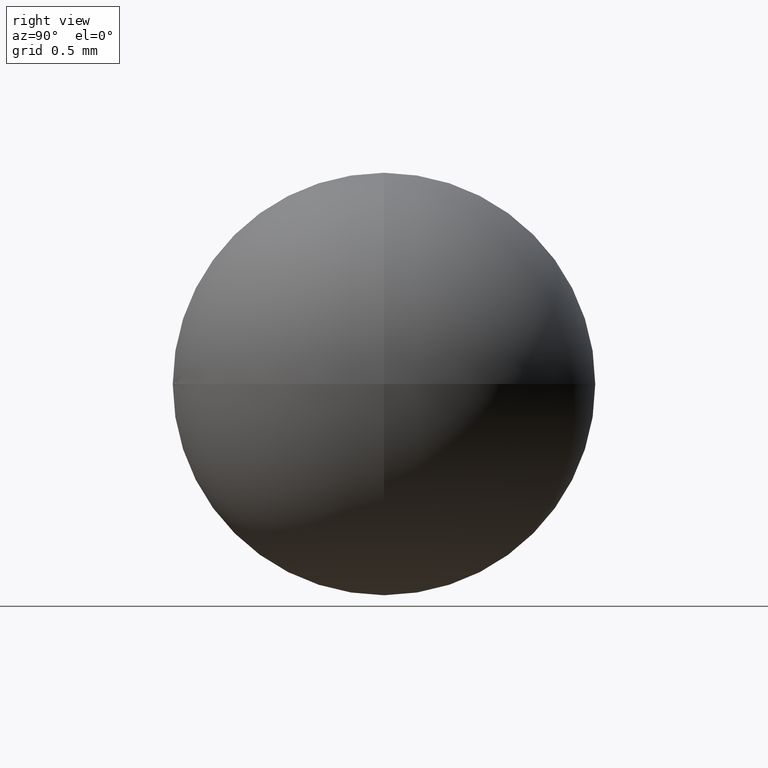
[diagram: clean part render]
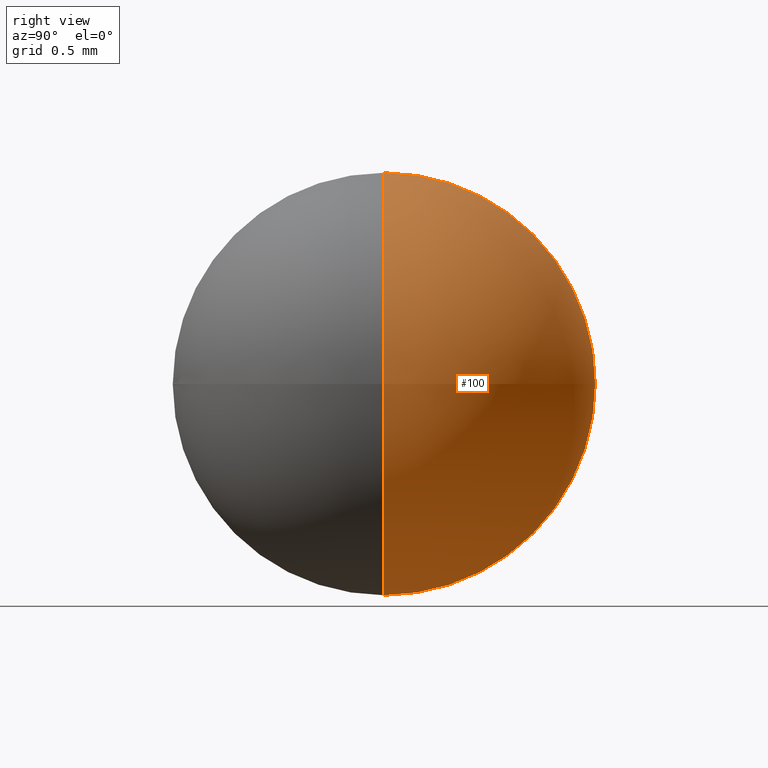
[diagram: same view with one face highlighted and labeled with its STEP entity id]
A machine part, right view. The second image highlights one B-rep face of the part: STEP entity #100.
In plain terms, the highlighted spherical surface has radius 1.5 mm.
Its self-contained STEP definition (entity closure, byte-faithful):
#3 = DIRECTION ( 'NONE',  ( 1.000000000000000000, 1.224646799147353200E-016, 0.0000000000000000000 ) ) ;
#15 = CARTESIAN_POINT ( 'NONE',  ( 0.0000000000000000000, 0.0000000000000000000, 0.0000000000000000000 ) ) ;
#18 = SPHERICAL_SURFACE ( 'NONE', #107, 1.500000000000000200 ) ;
#29 = DIRECTION ( 'NONE',  ( 0.0000000000000000000, 1.000000000000000000, -0.0000000000000000000 ) ) ;
#30 = CARTESIAN_POINT ( 'NONE',  ( 0.0000000000000000000, 0.0000000000000000000, 0.0000000000000000000 ) ) ;
#33 = ORIENTED_EDGE ( 'NONE', *, *, #112, .T. ) ;
#65 = DIRECTION ( 'NONE',  ( 0.0000000000000000000, 0.0000000000000000000, 1.000000000000000000 ) ) ;
#72 = EDGE_CURVE ( 'NONE', #139, #90, #188, .T. ) ;
#89 = AXIS2_PLACEMENT_3D ( 'NONE', #15, #194, #3 ) ;
#90 = VERTEX_POINT ( 'NONE', #113 ) ;
#95 = DIRECTION ( 'NONE',  ( 1.000000000000000000, 0.0000000000000000000, 0.0000000000000000000 ) ) ;
#100 = ADVANCED_FACE ( 'NONE', ( #162 ), #18, .T. ) ;
#107 = AXIS2_PLACEMENT_3D ( 'NONE', #114, #192, #95 ) ;
#112 = EDGE_CURVE ( 'NONE', #139, #90, #186, .T. ) ;
#113 = CARTESIAN_POINT ( 'NONE',  ( 9.184850993605150900E-017, 0.0000000000000000000, -1.500000000000000200 ) ) ;
#114 = CARTESIAN_POINT ( 'NONE',  ( 0.0000000000000000000, 0.0000000000000000000, 0.0000000000000000000 ) ) ;
#117 = AXIS2_PLACEMENT_3D ( 'NONE', #30, #29, #65 ) ;
#139 = VERTEX_POINT ( 'NONE', #146 ) ;
#146 = CARTESIAN_POINT ( 'NONE',  ( 9.184850993605150900E-017, 0.0000000000000000000, 1.500000000000000200 ) ) ;
#156 = EDGE_LOOP ( 'NONE', ( #201, #33 ) ) ;
#162 = FACE_OUTER_BOUND ( 'NONE', #156, .T. ) ;
#186 = CIRCLE ( 'NONE', #117, 1.500000000000000200 ) ;
#188 = CIRCLE ( 'NONE', #89, 1.500000000000000200 ) ;
#192 = DIRECTION ( 'NONE',  ( 0.0000000000000000000, -1.000000000000000000, -0.0000000000000000000 ) ) ;
#194 = DIRECTION ( 'NONE',  ( 1.224646799147353200E-016, -1.000000000000000000, 0.0000000000000000000 ) ) ;
#201 = ORIENTED_EDGE ( 'NONE', *, *, #72, .F. ) ;